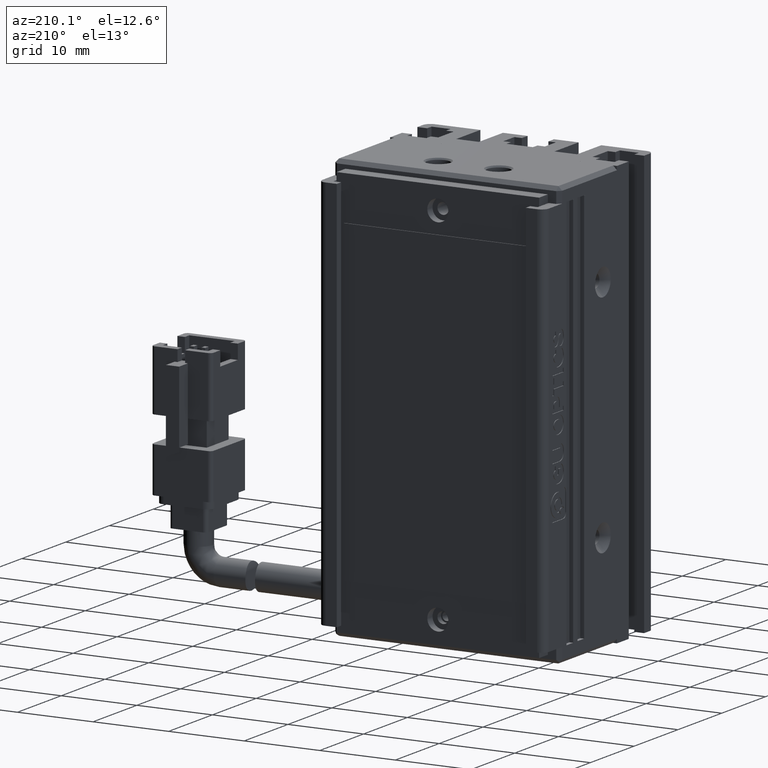
[diagram: clean part render]
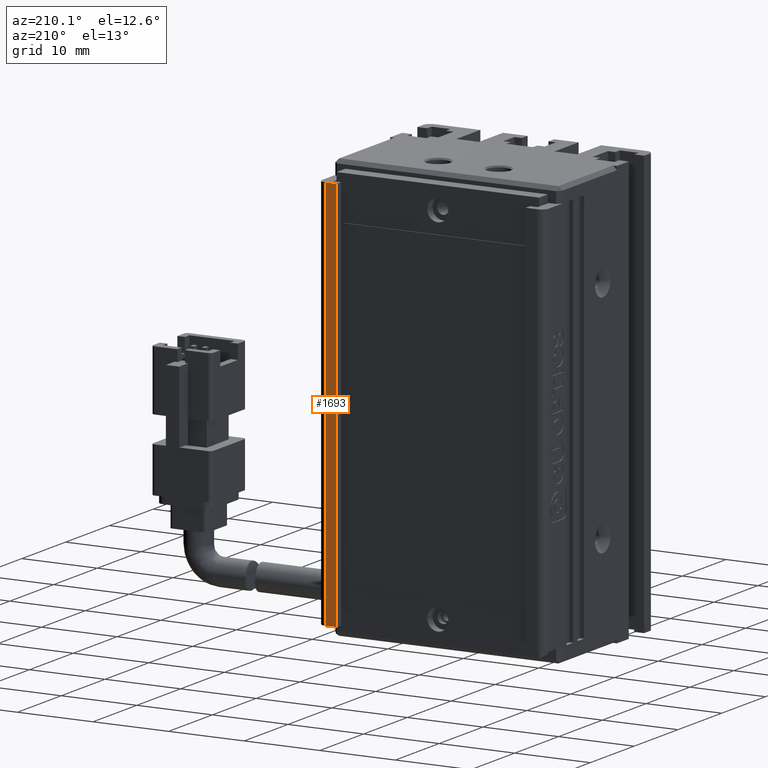
[diagram: same view with one face highlighted and labeled with its STEP entity id]
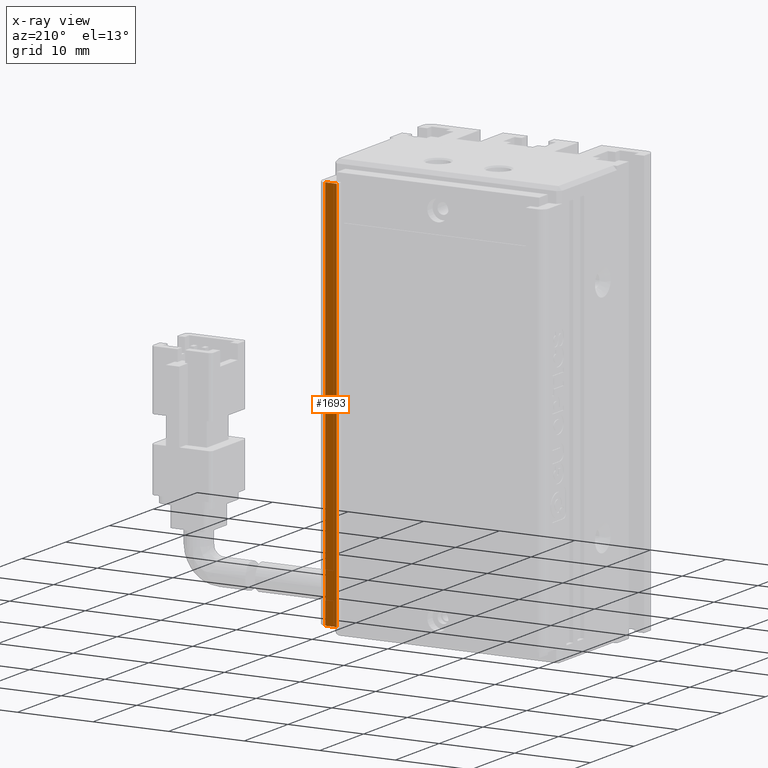
[diagram: x-ray of the same camera — body ghosted, the highlighted face saturated]
A machine part, auxiliary view. The second image highlights one B-rep face of the part: STEP entity #1693.
The next image is the same camera in x-ray: the body ghosted, the highlighted face saturated — about 0% of this face is hidden behind the body in this view.
In plain terms, the highlighted planar face has unit normal (-0, -1, 0).
Its self-contained STEP definition (entity closure, byte-faithful):
#821 = DIRECTION ( 'NONE',  ( 1.000000000000000000, -2.312964634635746600E-015, 0.0000000000000000000 ) ) ;
#1693 = ADVANCED_FACE ( 'NONE', ( #7917 ), #3165, .F. ) ;
#2530 = ORIENTED_EDGE ( 'NONE', *, *, #16578, .F. ) ;
#2783 = CARTESIAN_POINT ( 'NONE',  ( 40.92537974683549600, 35.69594479660390400, -87.00000000000001400 ) ) ;
#2817 = DIRECTION ( 'NONE',  ( 1.000000000000000000, -2.312964634635746600E-015, 0.0000000000000000000 ) ) ;
#2878 = ORIENTED_EDGE ( 'NONE', *, *, #16615, .F. ) ;
#2910 = DIRECTION ( 'NONE',  ( -2.312964634635746600E-015, -1.000000000000000000, 0.0000000000000000000 ) ) ;
#3007 = ORIENTED_EDGE ( 'NONE', *, *, #16721, .F. ) ;
#3165 = PLANE ( 'NONE',  #5409 ) ;
#3515 = ORIENTED_EDGE ( 'NONE', *, *, #16757, .F. ) ;
#5409 = AXIS2_PLACEMENT_3D ( 'NONE', #2783, #2910, #2817 ) ;
#5807 = CARTESIAN_POINT ( 'NONE',  ( 54.92537974683542500, 35.69594479660387500, -89.00000000000000000 ) ) ;
#6012 = LINE ( 'NONE', #10694, #25127 ) ;
#7222 = VECTOR ( 'NONE', #21688, 1000.000000000000000 ) ;
#7245 = CARTESIAN_POINT ( 'NONE',  ( 53.42537974683542500, 35.69594479660387500, -141.0000000000000000 ) ) ;
#7917 = FACE_OUTER_BOUND ( 'NONE', #10754, .T. ) ;
#9069 = VECTOR ( 'NONE', #10003, 1000.000000000000000 ) ;
#9785 = CARTESIAN_POINT ( 'NONE',  ( 54.92537974683542500, 35.69594479660387500, -141.0000000000000000 ) ) ;
#9965 = VECTOR ( 'NONE', #12711, 1000.000000000000000 ) ;
#10003 = DIRECTION ( 'NONE',  ( -1.000000000000000000, 2.312964634635746600E-015, -0.0000000000000000000 ) ) ;
#10694 = CARTESIAN_POINT ( 'NONE',  ( 40.92537974683549600, 35.69594479660390400, -141.0000000000000000 ) ) ;
#10754 = EDGE_LOOP ( 'NONE', ( #2530, #2878, #3007, #3515 ) ) ;
#10771 = CARTESIAN_POINT ( 'NONE',  ( 53.42537974683542500, 35.69594479660387500, -87.00000000000001400 ) ) ;
#12711 = DIRECTION ( 'NONE',  ( -0.0000000000000000000, -0.0000000000000000000, -1.000000000000000000 ) ) ;
#15062 = LINE ( 'NONE', #10771, #9965 ) ;
#16578 = EDGE_CURVE ( 'NONE', #17537, #20609, #19277, .T. ) ;
#16615 = EDGE_CURVE ( 'NONE', #21983, #17537, #22009, .T. ) ;
#16721 = EDGE_CURVE ( 'NONE', #22915, #21983, #6012, .T. ) ;
#16757 = EDGE_CURVE ( 'NONE', #20609, #22915, #15062, .T. ) ;
#17537 = VERTEX_POINT ( 'NONE', #5807 ) ;
#17616 = CARTESIAN_POINT ( 'NONE',  ( 40.92537974683549600, 35.69594479660390400, -89.00000000000000000 ) ) ;
#17681 = CARTESIAN_POINT ( 'NONE',  ( 53.42537974683542500, 35.69594479660387500, -89.00000000000000000 ) ) ;
#17783 = CARTESIAN_POINT ( 'NONE',  ( 54.92537974683542500, 35.69594479660387500, -87.00000000000001400 ) ) ;
#19277 = LINE ( 'NONE', #17616, #9069 ) ;
#20609 = VERTEX_POINT ( 'NONE', #17681 ) ;
#21688 = DIRECTION ( 'NONE',  ( 0.0000000000000000000, 0.0000000000000000000, 1.000000000000000000 ) ) ;
#21983 = VERTEX_POINT ( 'NONE', #9785 ) ;
#22009 = LINE ( 'NONE', #17783, #7222 ) ;
#22915 = VERTEX_POINT ( 'NONE', #7245 ) ;
#25127 = VECTOR ( 'NONE', #821, 1000.000000000000000 ) ;